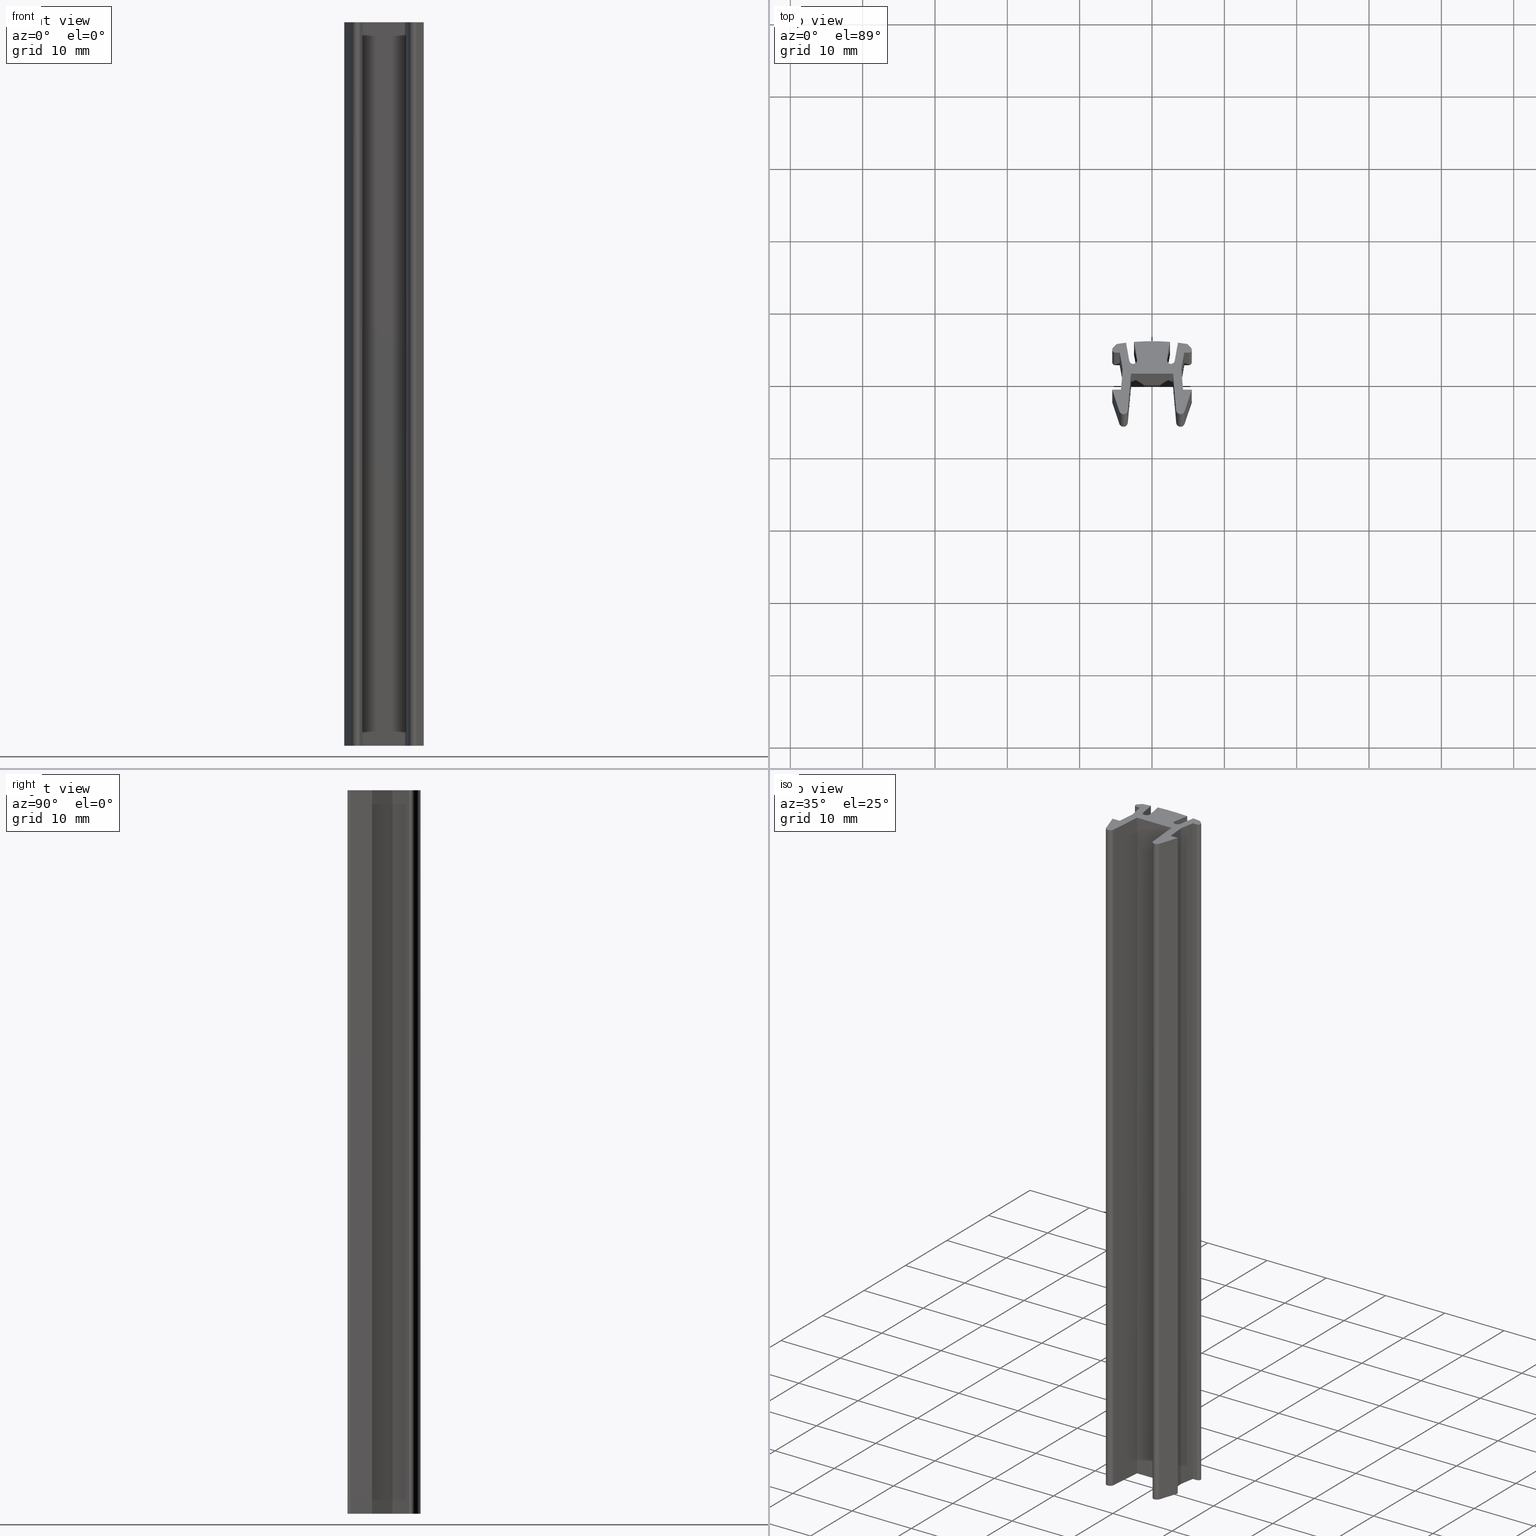
[diagram: canonical four-view strip — front | top / right | iso, engineering-drawing reading convention]
A machine part, canonical four-view strip (front | top / right | iso — engineering-drawing reading convention). The complete STEP part file that produces these views, byte-faithful:
ISO-10303-21;
HEADER;
/* Generated by software containing ST-Developer
 * from STEP Tools, Inc. (www.steptools.com) 
 */

FILE_DESCRIPTION(
/* description */ ('GUARNIZIONE CAVA PER - PVC NERO '),
/* implementation_level */ '2;1');

FILE_NAME(
/* name */ 'C:\\Users\\Tecnico5\\Documents\\DGUCA0000013.stp',
/* time_stamp */ '2020-07-09T18:02:31+02:00',
/* author */ ('tecnico5'),
/* organization */ (''),
/* preprocessor_version */ 'ST-DEVELOPER v17.2',
/* originating_system */ 'Autodesk Inventor 2019',
/* authorisation */ '');

FILE_SCHEMA (('AUTOMOTIVE_DESIGN { 1 0 10303 214 3 1 1 }'));
ENDSEC;

DATA;
#10=MECHANICAL_DESIGN_GEOMETRIC_PRESENTATION_REPRESENTATION('',(#13),#999);
#11=SHAPE_REPRESENTATION_RELATIONSHIP('SRR','None',#1006,#12);
#12=ADVANCED_BREP_SHAPE_REPRESENTATION('',(#14),#998);
#13=STYLED_ITEM('',(#1015),#14);
#14=MANIFOLD_SOLID_BREP('Solido2',#593);
#15=CIRCLE('',#617,0.6);
#16=CIRCLE('',#618,0.6);
#17=CIRCLE('',#625,0.399999999999949);
#18=CIRCLE('',#626,0.399999999999949);
#19=CIRCLE('',#629,29.9999984919437);
#20=CIRCLE('',#630,29.9999984919437);
#21=CIRCLE('',#633,0.55);
#22=CIRCLE('',#634,0.55);
#23=CIRCLE('',#637,29.9999984886163);
#24=CIRCLE('',#638,29.9999984886163);
#25=CIRCLE('',#641,0.55);
#26=CIRCLE('',#642,0.55);
#27=CIRCLE('',#645,29.9999984919437);
#28=CIRCLE('',#646,29.9999984919437);
#29=CIRCLE('',#649,0.399999999999949);
#30=CIRCLE('',#650,0.399999999999949);
#31=CIRCLE('',#657,0.6);
#32=CIRCLE('',#658,0.6);
#33=CYLINDRICAL_SURFACE('',#616,0.6);
#34=CYLINDRICAL_SURFACE('',#624,0.399999999999949);
#35=CYLINDRICAL_SURFACE('',#628,29.9999984919437);
#36=CYLINDRICAL_SURFACE('',#632,0.55);
#37=CYLINDRICAL_SURFACE('',#636,29.9999984886163);
#38=CYLINDRICAL_SURFACE('',#640,0.55);
#39=CYLINDRICAL_SURFACE('',#644,29.9999984919437);
#40=CYLINDRICAL_SURFACE('',#648,0.399999999999949);
#41=CYLINDRICAL_SURFACE('',#656,0.6);
#42=FACE_OUTER_BOUND('',#72,.T.);
#43=FACE_OUTER_BOUND('',#73,.T.);
#44=FACE_OUTER_BOUND('',#74,.T.);
#45=FACE_OUTER_BOUND('',#75,.T.);
#46=FACE_OUTER_BOUND('',#76,.T.);
#47=FACE_OUTER_BOUND('',#77,.T.);
#48=FACE_OUTER_BOUND('',#78,.T.);
#49=FACE_OUTER_BOUND('',#79,.T.);
#50=FACE_OUTER_BOUND('',#80,.T.);
#51=FACE_OUTER_BOUND('',#81,.T.);
#52=FACE_OUTER_BOUND('',#82,.T.);
#53=FACE_OUTER_BOUND('',#83,.T.);
#54=FACE_OUTER_BOUND('',#84,.T.);
#55=FACE_OUTER_BOUND('',#85,.T.);
#56=FACE_OUTER_BOUND('',#86,.T.);
#57=FACE_OUTER_BOUND('',#87,.T.);
#58=FACE_OUTER_BOUND('',#88,.T.);
#59=FACE_OUTER_BOUND('',#89,.T.);
#60=FACE_OUTER_BOUND('',#90,.T.);
#61=FACE_OUTER_BOUND('',#91,.T.);
#62=FACE_OUTER_BOUND('',#92,.T.);
#63=FACE_OUTER_BOUND('',#93,.T.);
#64=FACE_OUTER_BOUND('',#94,.T.);
#65=FACE_OUTER_BOUND('',#95,.T.);
#66=FACE_OUTER_BOUND('',#96,.T.);
#67=FACE_OUTER_BOUND('',#97,.T.);
#68=FACE_OUTER_BOUND('',#98,.T.);
#69=FACE_OUTER_BOUND('',#99,.T.);
#70=FACE_OUTER_BOUND('',#100,.T.);
#71=FACE_OUTER_BOUND('',#101,.T.);
#72=EDGE_LOOP('',(#374,#375,#376,#377));
#73=EDGE_LOOP('',(#378,#379,#380,#381));
#74=EDGE_LOOP('',(#382,#383,#384,#385));
#75=EDGE_LOOP('',(#386,#387,#388,#389));
#76=EDGE_LOOP('',(#390,#391,#392,#393));
#77=EDGE_LOOP('',(#394,#395,#396,#397));
#78=EDGE_LOOP('',(#398,#399,#400,#401));
#79=EDGE_LOOP('',(#402,#403,#404,#405));
#80=EDGE_LOOP('',(#406,#407,#408,#409));
#81=EDGE_LOOP('',(#410,#411,#412,#413));
#82=EDGE_LOOP('',(#414,#415,#416,#417));
#83=EDGE_LOOP('',(#418,#419,#420,#421));
#84=EDGE_LOOP('',(#422,#423,#424,#425));
#85=EDGE_LOOP('',(#426,#427,#428,#429));
#86=EDGE_LOOP('',(#430,#431,#432,#433));
#87=EDGE_LOOP('',(#434,#435,#436,#437));
#88=EDGE_LOOP('',(#438,#439,#440,#441));
#89=EDGE_LOOP('',(#442,#443,#444,#445));
#90=EDGE_LOOP('',(#446,#447,#448,#449));
#91=EDGE_LOOP('',(#450,#451,#452,#453));
#92=EDGE_LOOP('',(#454,#455,#456,#457));
#93=EDGE_LOOP('',(#458,#459,#460,#461));
#94=EDGE_LOOP('',(#462,#463,#464,#465));
#95=EDGE_LOOP('',(#466,#467,#468,#469));
#96=EDGE_LOOP('',(#470,#471,#472,#473));
#97=EDGE_LOOP('',(#474,#475,#476,#477));
#98=EDGE_LOOP('',(#478,#479,#480,#481));
#99=EDGE_LOOP('',(#482,#483,#484,#485));
#100=EDGE_LOOP('',(#486,#487,#488,#489,#490,#491,#492,#493,#494,#495,#496,
#497,#498,#499,#500,#501,#502,#503,#504,#505,#506,#507,#508,#509,#510,#511,
#512,#513));
#101=EDGE_LOOP('',(#514,#515,#516,#517,#518,#519,#520,#521,#522,#523,#524,
#525,#526,#527,#528,#529,#530,#531,#532,#533,#534,#535,#536,#537,#538,#539,
#540,#541));
#102=LINE('',#829,#168);
#103=LINE('',#831,#169);
#104=LINE('',#833,#170);
#105=LINE('',#834,#171);
#106=LINE('',#837,#172);
#107=LINE('',#839,#173);
#108=LINE('',#840,#174);
#109=LINE('',#843,#175);
#110=LINE('',#845,#176);
#111=LINE('',#846,#177);
#112=LINE('',#852,#178);
#113=LINE('',#855,#179);
#114=LINE('',#857,#180);
#115=LINE('',#858,#181);
#116=LINE('',#861,#182);
#117=LINE('',#863,#183);
#118=LINE('',#864,#184);
#119=LINE('',#867,#185);
#120=LINE('',#869,#186);
#121=LINE('',#870,#187);
#122=LINE('',#873,#188);
#123=LINE('',#875,#189);
#124=LINE('',#876,#190);
#125=LINE('',#879,#191);
#126=LINE('',#881,#192);
#127=LINE('',#882,#193);
#128=LINE('',#888,#194);
#129=LINE('',#891,#195);
#130=LINE('',#893,#196);
#131=LINE('',#894,#197);
#132=LINE('',#900,#198);
#133=LINE('',#903,#199);
#134=LINE('',#905,#200);
#135=LINE('',#906,#201);
#136=LINE('',#912,#202);
#137=LINE('',#915,#203);
#138=LINE('',#917,#204);
#139=LINE('',#918,#205);
#140=LINE('',#924,#206);
#141=LINE('',#927,#207);
#142=LINE('',#929,#208);
#143=LINE('',#930,#209);
#144=LINE('',#936,#210);
#145=LINE('',#939,#211);
#146=LINE('',#941,#212);
#147=LINE('',#942,#213);
#148=LINE('',#948,#214);
#149=LINE('',#951,#215);
#150=LINE('',#953,#216);
#151=LINE('',#954,#217);
#152=LINE('',#960,#218);
#153=LINE('',#963,#219);
#154=LINE('',#965,#220);
#155=LINE('',#966,#221);
#156=LINE('',#969,#222);
#157=LINE('',#971,#223);
#158=LINE('',#972,#224);
#159=LINE('',#975,#225);
#160=LINE('',#977,#226);
#161=LINE('',#978,#227);
#162=LINE('',#981,#228);
#163=LINE('',#983,#229);
#164=LINE('',#984,#230);
#165=LINE('',#987,#231);
#166=LINE('',#989,#232);
#167=LINE('',#990,#233);
#168=VECTOR('',#665,10.);
#169=VECTOR('',#666,10.);
#170=VECTOR('',#667,10.);
#171=VECTOR('',#668,10.);
#172=VECTOR('',#671,10.);
#173=VECTOR('',#672,10.);
#174=VECTOR('',#673,10.);
#175=VECTOR('',#676,10.);
#176=VECTOR('',#677,10.);
#177=VECTOR('',#678,10.);
#178=VECTOR('',#685,10.);
#179=VECTOR('',#688,10.);
#180=VECTOR('',#689,10.);
#181=VECTOR('',#690,10.);
#182=VECTOR('',#693,10.);
#183=VECTOR('',#694,10.);
#184=VECTOR('',#695,10.);
#185=VECTOR('',#698,10.);
#186=VECTOR('',#699,10.);
#187=VECTOR('',#700,10.);
#188=VECTOR('',#703,10.);
#189=VECTOR('',#704,10.);
#190=VECTOR('',#705,10.);
#191=VECTOR('',#708,10.);
#192=VECTOR('',#709,10.);
#193=VECTOR('',#710,10.);
#194=VECTOR('',#717,10.);
#195=VECTOR('',#720,10.);
#196=VECTOR('',#721,10.);
#197=VECTOR('',#722,10.);
#198=VECTOR('',#729,10.);
#199=VECTOR('',#732,10.);
#200=VECTOR('',#733,10.);
#201=VECTOR('',#734,10.);
#202=VECTOR('',#741,10.);
#203=VECTOR('',#744,10.);
#204=VECTOR('',#745,10.);
#205=VECTOR('',#746,10.);
#206=VECTOR('',#753,10.);
#207=VECTOR('',#756,10.);
#208=VECTOR('',#757,10.);
#209=VECTOR('',#758,10.);
#210=VECTOR('',#765,10.);
#211=VECTOR('',#768,10.);
#212=VECTOR('',#769,10.);
#213=VECTOR('',#770,10.);
#214=VECTOR('',#777,10.);
#215=VECTOR('',#780,10.);
#216=VECTOR('',#781,10.);
#217=VECTOR('',#782,10.);
#218=VECTOR('',#789,10.);
#219=VECTOR('',#792,10.);
#220=VECTOR('',#793,10.);
#221=VECTOR('',#794,10.);
#222=VECTOR('',#797,10.);
#223=VECTOR('',#798,10.);
#224=VECTOR('',#799,10.);
#225=VECTOR('',#802,10.);
#226=VECTOR('',#803,10.);
#227=VECTOR('',#804,10.);
#228=VECTOR('',#807,10.);
#229=VECTOR('',#808,10.);
#230=VECTOR('',#809,10.);
#231=VECTOR('',#812,10.);
#232=VECTOR('',#813,10.);
#233=VECTOR('',#814,10.);
#234=VERTEX_POINT('',#827);
#235=VERTEX_POINT('',#828);
#236=VERTEX_POINT('',#830);
#237=VERTEX_POINT('',#832);
#238=VERTEX_POINT('',#836);
#239=VERTEX_POINT('',#838);
#240=VERTEX_POINT('',#842);
#241=VERTEX_POINT('',#844);
#242=VERTEX_POINT('',#848);
#243=VERTEX_POINT('',#850);
#244=VERTEX_POINT('',#854);
#245=VERTEX_POINT('',#856);
#246=VERTEX_POINT('',#860);
#247=VERTEX_POINT('',#862);
#248=VERTEX_POINT('',#866);
#249=VERTEX_POINT('',#868);
#250=VERTEX_POINT('',#872);
#251=VERTEX_POINT('',#874);
#252=VERTEX_POINT('',#878);
#253=VERTEX_POINT('',#880);
#254=VERTEX_POINT('',#884);
#255=VERTEX_POINT('',#886);
#256=VERTEX_POINT('',#890);
#257=VERTEX_POINT('',#892);
#258=VERTEX_POINT('',#896);
#259=VERTEX_POINT('',#898);
#260=VERTEX_POINT('',#902);
#261=VERTEX_POINT('',#904);
#262=VERTEX_POINT('',#908);
#263=VERTEX_POINT('',#910);
#264=VERTEX_POINT('',#914);
#265=VERTEX_POINT('',#916);
#266=VERTEX_POINT('',#920);
#267=VERTEX_POINT('',#922);
#268=VERTEX_POINT('',#926);
#269=VERTEX_POINT('',#928);
#270=VERTEX_POINT('',#932);
#271=VERTEX_POINT('',#934);
#272=VERTEX_POINT('',#938);
#273=VERTEX_POINT('',#940);
#274=VERTEX_POINT('',#944);
#275=VERTEX_POINT('',#946);
#276=VERTEX_POINT('',#950);
#277=VERTEX_POINT('',#952);
#278=VERTEX_POINT('',#956);
#279=VERTEX_POINT('',#958);
#280=VERTEX_POINT('',#962);
#281=VERTEX_POINT('',#964);
#282=VERTEX_POINT('',#968);
#283=VERTEX_POINT('',#970);
#284=VERTEX_POINT('',#974);
#285=VERTEX_POINT('',#976);
#286=VERTEX_POINT('',#980);
#287=VERTEX_POINT('',#982);
#288=VERTEX_POINT('',#986);
#289=VERTEX_POINT('',#988);
#290=EDGE_CURVE('',#234,#235,#102,.T.);
#291=EDGE_CURVE('',#235,#236,#103,.T.);
#292=EDGE_CURVE('',#237,#236,#104,.T.);
#293=EDGE_CURVE('',#234,#237,#105,.T.);
#294=EDGE_CURVE('',#238,#234,#106,.T.);
#295=EDGE_CURVE('',#239,#237,#107,.T.);
#296=EDGE_CURVE('',#238,#239,#108,.T.);
#297=EDGE_CURVE('',#240,#238,#109,.T.);
#298=EDGE_CURVE('',#241,#239,#110,.T.);
#299=EDGE_CURVE('',#240,#241,#111,.T.);
#300=EDGE_CURVE('',#242,#240,#15,.T.);
#301=EDGE_CURVE('',#243,#241,#16,.T.);
#302=EDGE_CURVE('',#242,#243,#112,.T.);
#303=EDGE_CURVE('',#244,#242,#113,.T.);
#304=EDGE_CURVE('',#245,#243,#114,.T.);
#305=EDGE_CURVE('',#244,#245,#115,.T.);
#306=EDGE_CURVE('',#246,#244,#116,.T.);
#307=EDGE_CURVE('',#247,#245,#117,.T.);
#308=EDGE_CURVE('',#246,#247,#118,.T.);
#309=EDGE_CURVE('',#248,#246,#119,.T.);
#310=EDGE_CURVE('',#249,#247,#120,.T.);
#311=EDGE_CURVE('',#248,#249,#121,.T.);
#312=EDGE_CURVE('',#250,#248,#122,.T.);
#313=EDGE_CURVE('',#251,#249,#123,.T.);
#314=EDGE_CURVE('',#250,#251,#124,.T.);
#315=EDGE_CURVE('',#252,#250,#125,.T.);
#316=EDGE_CURVE('',#253,#251,#126,.T.);
#317=EDGE_CURVE('',#252,#253,#127,.T.);
#318=EDGE_CURVE('',#254,#252,#17,.T.);
#319=EDGE_CURVE('',#255,#253,#18,.T.);
#320=EDGE_CURVE('',#254,#255,#128,.T.);
#321=EDGE_CURVE('',#256,#254,#129,.T.);
#322=EDGE_CURVE('',#257,#255,#130,.T.);
#323=EDGE_CURVE('',#256,#257,#131,.T.);
#324=EDGE_CURVE('',#258,#256,#19,.T.);
#325=EDGE_CURVE('',#259,#257,#20,.T.);
#326=EDGE_CURVE('',#258,#259,#132,.T.);
#327=EDGE_CURVE('',#260,#258,#133,.T.);
#328=EDGE_CURVE('',#261,#259,#134,.T.);
#329=EDGE_CURVE('',#260,#261,#135,.T.);
#330=EDGE_CURVE('',#262,#260,#21,.T.);
#331=EDGE_CURVE('',#263,#261,#22,.T.);
#332=EDGE_CURVE('',#262,#263,#136,.T.);
#333=EDGE_CURVE('',#264,#262,#137,.T.);
#334=EDGE_CURVE('',#265,#263,#138,.T.);
#335=EDGE_CURVE('',#264,#265,#139,.T.);
#336=EDGE_CURVE('',#266,#264,#23,.T.);
#337=EDGE_CURVE('',#267,#265,#24,.T.);
#338=EDGE_CURVE('',#266,#267,#140,.T.);
#339=EDGE_CURVE('',#268,#266,#141,.T.);
#340=EDGE_CURVE('',#269,#267,#142,.T.);
#341=EDGE_CURVE('',#268,#269,#143,.T.);
#342=EDGE_CURVE('',#270,#268,#25,.T.);
#343=EDGE_CURVE('',#271,#269,#26,.T.);
#344=EDGE_CURVE('',#270,#271,#144,.T.);
#345=EDGE_CURVE('',#272,#270,#145,.T.);
#346=EDGE_CURVE('',#273,#271,#146,.T.);
#347=EDGE_CURVE('',#272,#273,#147,.T.);
#348=EDGE_CURVE('',#274,#272,#27,.T.);
#349=EDGE_CURVE('',#275,#273,#28,.T.);
#350=EDGE_CURVE('',#274,#275,#148,.T.);
#351=EDGE_CURVE('',#276,#274,#149,.T.);
#352=EDGE_CURVE('',#277,#275,#150,.T.);
#353=EDGE_CURVE('',#276,#277,#151,.T.);
#354=EDGE_CURVE('',#278,#276,#29,.T.);
#355=EDGE_CURVE('',#279,#277,#30,.T.);
#356=EDGE_CURVE('',#278,#279,#152,.T.);
#357=EDGE_CURVE('',#280,#278,#153,.T.);
#358=EDGE_CURVE('',#281,#279,#154,.T.);
#359=EDGE_CURVE('',#280,#281,#155,.T.);
#360=EDGE_CURVE('',#282,#280,#156,.T.);
#361=EDGE_CURVE('',#283,#281,#157,.T.);
#362=EDGE_CURVE('',#282,#283,#158,.T.);
#363=EDGE_CURVE('',#284,#282,#159,.T.);
#364=EDGE_CURVE('',#285,#283,#160,.T.);
#365=EDGE_CURVE('',#284,#285,#161,.T.);
#366=EDGE_CURVE('',#286,#284,#162,.T.);
#367=EDGE_CURVE('',#287,#285,#163,.T.);
#368=EDGE_CURVE('',#286,#287,#164,.T.);
#369=EDGE_CURVE('',#288,#286,#165,.T.);
#370=EDGE_CURVE('',#289,#287,#166,.T.);
#371=EDGE_CURVE('',#288,#289,#167,.T.);
#372=EDGE_CURVE('',#235,#288,#31,.T.);
#373=EDGE_CURVE('',#236,#289,#32,.T.);
#374=ORIENTED_EDGE('',*,*,#290,.T.);
#375=ORIENTED_EDGE('',*,*,#291,.T.);
#376=ORIENTED_EDGE('',*,*,#292,.F.);
#377=ORIENTED_EDGE('',*,*,#293,.F.);
#378=ORIENTED_EDGE('',*,*,#294,.T.);
#379=ORIENTED_EDGE('',*,*,#293,.T.);
#380=ORIENTED_EDGE('',*,*,#295,.F.);
#381=ORIENTED_EDGE('',*,*,#296,.F.);
#382=ORIENTED_EDGE('',*,*,#297,.T.);
#383=ORIENTED_EDGE('',*,*,#296,.T.);
#384=ORIENTED_EDGE('',*,*,#298,.F.);
#385=ORIENTED_EDGE('',*,*,#299,.F.);
#386=ORIENTED_EDGE('',*,*,#300,.T.);
#387=ORIENTED_EDGE('',*,*,#299,.T.);
#388=ORIENTED_EDGE('',*,*,#301,.F.);
#389=ORIENTED_EDGE('',*,*,#302,.F.);
#390=ORIENTED_EDGE('',*,*,#303,.T.);
#391=ORIENTED_EDGE('',*,*,#302,.T.);
#392=ORIENTED_EDGE('',*,*,#304,.F.);
#393=ORIENTED_EDGE('',*,*,#305,.F.);
#394=ORIENTED_EDGE('',*,*,#306,.T.);
#395=ORIENTED_EDGE('',*,*,#305,.T.);
#396=ORIENTED_EDGE('',*,*,#307,.F.);
#397=ORIENTED_EDGE('',*,*,#308,.F.);
#398=ORIENTED_EDGE('',*,*,#309,.T.);
#399=ORIENTED_EDGE('',*,*,#308,.T.);
#400=ORIENTED_EDGE('',*,*,#310,.F.);
#401=ORIENTED_EDGE('',*,*,#311,.F.);
#402=ORIENTED_EDGE('',*,*,#312,.T.);
#403=ORIENTED_EDGE('',*,*,#311,.T.);
#404=ORIENTED_EDGE('',*,*,#313,.F.);
#405=ORIENTED_EDGE('',*,*,#314,.F.);
#406=ORIENTED_EDGE('',*,*,#315,.T.);
#407=ORIENTED_EDGE('',*,*,#314,.T.);
#408=ORIENTED_EDGE('',*,*,#316,.F.);
#409=ORIENTED_EDGE('',*,*,#317,.F.);
#410=ORIENTED_EDGE('',*,*,#318,.T.);
#411=ORIENTED_EDGE('',*,*,#317,.T.);
#412=ORIENTED_EDGE('',*,*,#319,.F.);
#413=ORIENTED_EDGE('',*,*,#320,.F.);
#414=ORIENTED_EDGE('',*,*,#321,.T.);
#415=ORIENTED_EDGE('',*,*,#320,.T.);
#416=ORIENTED_EDGE('',*,*,#322,.F.);
#417=ORIENTED_EDGE('',*,*,#323,.F.);
#418=ORIENTED_EDGE('',*,*,#324,.T.);
#419=ORIENTED_EDGE('',*,*,#323,.T.);
#420=ORIENTED_EDGE('',*,*,#325,.F.);
#421=ORIENTED_EDGE('',*,*,#326,.F.);
#422=ORIENTED_EDGE('',*,*,#327,.T.);
#423=ORIENTED_EDGE('',*,*,#326,.T.);
#424=ORIENTED_EDGE('',*,*,#328,.F.);
#425=ORIENTED_EDGE('',*,*,#329,.F.);
#426=ORIENTED_EDGE('',*,*,#330,.T.);
#427=ORIENTED_EDGE('',*,*,#329,.T.);
#428=ORIENTED_EDGE('',*,*,#331,.F.);
#429=ORIENTED_EDGE('',*,*,#332,.F.);
#430=ORIENTED_EDGE('',*,*,#333,.T.);
#431=ORIENTED_EDGE('',*,*,#332,.T.);
#432=ORIENTED_EDGE('',*,*,#334,.F.);
#433=ORIENTED_EDGE('',*,*,#335,.F.);
#434=ORIENTED_EDGE('',*,*,#336,.T.);
#435=ORIENTED_EDGE('',*,*,#335,.T.);
#436=ORIENTED_EDGE('',*,*,#337,.F.);
#437=ORIENTED_EDGE('',*,*,#338,.F.);
#438=ORIENTED_EDGE('',*,*,#339,.T.);
#439=ORIENTED_EDGE('',*,*,#338,.T.);
#440=ORIENTED_EDGE('',*,*,#340,.F.);
#441=ORIENTED_EDGE('',*,*,#341,.F.);
#442=ORIENTED_EDGE('',*,*,#342,.T.);
#443=ORIENTED_EDGE('',*,*,#341,.T.);
#444=ORIENTED_EDGE('',*,*,#343,.F.);
#445=ORIENTED_EDGE('',*,*,#344,.F.);
#446=ORIENTED_EDGE('',*,*,#345,.T.);
#447=ORIENTED_EDGE('',*,*,#344,.T.);
#448=ORIENTED_EDGE('',*,*,#346,.F.);
#449=ORIENTED_EDGE('',*,*,#347,.F.);
#450=ORIENTED_EDGE('',*,*,#348,.T.);
#451=ORIENTED_EDGE('',*,*,#347,.T.);
#452=ORIENTED_EDGE('',*,*,#349,.F.);
#453=ORIENTED_EDGE('',*,*,#350,.F.);
#454=ORIENTED_EDGE('',*,*,#351,.T.);
#455=ORIENTED_EDGE('',*,*,#350,.T.);
#456=ORIENTED_EDGE('',*,*,#352,.F.);
#457=ORIENTED_EDGE('',*,*,#353,.F.);
#458=ORIENTED_EDGE('',*,*,#354,.T.);
#459=ORIENTED_EDGE('',*,*,#353,.T.);
#460=ORIENTED_EDGE('',*,*,#355,.F.);
#461=ORIENTED_EDGE('',*,*,#356,.F.);
#462=ORIENTED_EDGE('',*,*,#357,.T.);
#463=ORIENTED_EDGE('',*,*,#356,.T.);
#464=ORIENTED_EDGE('',*,*,#358,.F.);
#465=ORIENTED_EDGE('',*,*,#359,.F.);
#466=ORIENTED_EDGE('',*,*,#360,.T.);
#467=ORIENTED_EDGE('',*,*,#359,.T.);
#468=ORIENTED_EDGE('',*,*,#361,.F.);
#469=ORIENTED_EDGE('',*,*,#362,.F.);
#470=ORIENTED_EDGE('',*,*,#363,.T.);
#471=ORIENTED_EDGE('',*,*,#362,.T.);
#472=ORIENTED_EDGE('',*,*,#364,.F.);
#473=ORIENTED_EDGE('',*,*,#365,.F.);
#474=ORIENTED_EDGE('',*,*,#366,.T.);
#475=ORIENTED_EDGE('',*,*,#365,.T.);
#476=ORIENTED_EDGE('',*,*,#367,.F.);
#477=ORIENTED_EDGE('',*,*,#368,.F.);
#478=ORIENTED_EDGE('',*,*,#369,.T.);
#479=ORIENTED_EDGE('',*,*,#368,.T.);
#480=ORIENTED_EDGE('',*,*,#370,.F.);
#481=ORIENTED_EDGE('',*,*,#371,.F.);
#482=ORIENTED_EDGE('',*,*,#372,.T.);
#483=ORIENTED_EDGE('',*,*,#371,.T.);
#484=ORIENTED_EDGE('',*,*,#373,.F.);
#485=ORIENTED_EDGE('',*,*,#291,.F.);
#486=ORIENTED_EDGE('',*,*,#373,.T.);
#487=ORIENTED_EDGE('',*,*,#370,.T.);
#488=ORIENTED_EDGE('',*,*,#367,.T.);
#489=ORIENTED_EDGE('',*,*,#364,.T.);
#490=ORIENTED_EDGE('',*,*,#361,.T.);
#491=ORIENTED_EDGE('',*,*,#358,.T.);
#492=ORIENTED_EDGE('',*,*,#355,.T.);
#493=ORIENTED_EDGE('',*,*,#352,.T.);
#494=ORIENTED_EDGE('',*,*,#349,.T.);
#495=ORIENTED_EDGE('',*,*,#346,.T.);
#496=ORIENTED_EDGE('',*,*,#343,.T.);
#497=ORIENTED_EDGE('',*,*,#340,.T.);
#498=ORIENTED_EDGE('',*,*,#337,.T.);
#499=ORIENTED_EDGE('',*,*,#334,.T.);
#500=ORIENTED_EDGE('',*,*,#331,.T.);
#501=ORIENTED_EDGE('',*,*,#328,.T.);
#502=ORIENTED_EDGE('',*,*,#325,.T.);
#503=ORIENTED_EDGE('',*,*,#322,.T.);
#504=ORIENTED_EDGE('',*,*,#319,.T.);
#505=ORIENTED_EDGE('',*,*,#316,.T.);
#506=ORIENTED_EDGE('',*,*,#313,.T.);
#507=ORIENTED_EDGE('',*,*,#310,.T.);
#508=ORIENTED_EDGE('',*,*,#307,.T.);
#509=ORIENTED_EDGE('',*,*,#304,.T.);
#510=ORIENTED_EDGE('',*,*,#301,.T.);
#511=ORIENTED_EDGE('',*,*,#298,.T.);
#512=ORIENTED_EDGE('',*,*,#295,.T.);
#513=ORIENTED_EDGE('',*,*,#292,.T.);
#514=ORIENTED_EDGE('',*,*,#372,.F.);
#515=ORIENTED_EDGE('',*,*,#290,.F.);
#516=ORIENTED_EDGE('',*,*,#294,.F.);
#517=ORIENTED_EDGE('',*,*,#297,.F.);
#518=ORIENTED_EDGE('',*,*,#300,.F.);
#519=ORIENTED_EDGE('',*,*,#303,.F.);
#520=ORIENTED_EDGE('',*,*,#306,.F.);
#521=ORIENTED_EDGE('',*,*,#309,.F.);
#522=ORIENTED_EDGE('',*,*,#312,.F.);
#523=ORIENTED_EDGE('',*,*,#315,.F.);
#524=ORIENTED_EDGE('',*,*,#318,.F.);
#525=ORIENTED_EDGE('',*,*,#321,.F.);
#526=ORIENTED_EDGE('',*,*,#324,.F.);
#527=ORIENTED_EDGE('',*,*,#327,.F.);
#528=ORIENTED_EDGE('',*,*,#330,.F.);
#529=ORIENTED_EDGE('',*,*,#333,.F.);
#530=ORIENTED_EDGE('',*,*,#336,.F.);
#531=ORIENTED_EDGE('',*,*,#339,.F.);
#532=ORIENTED_EDGE('',*,*,#342,.F.);
#533=ORIENTED_EDGE('',*,*,#345,.F.);
#534=ORIENTED_EDGE('',*,*,#348,.F.);
#535=ORIENTED_EDGE('',*,*,#351,.F.);
#536=ORIENTED_EDGE('',*,*,#354,.F.);
#537=ORIENTED_EDGE('',*,*,#357,.F.);
#538=ORIENTED_EDGE('',*,*,#360,.F.);
#539=ORIENTED_EDGE('',*,*,#363,.F.);
#540=ORIENTED_EDGE('',*,*,#366,.F.);
#541=ORIENTED_EDGE('',*,*,#369,.F.);
#542=PLANE('',#613);
#543=PLANE('',#614);
#544=PLANE('',#615);
#545=PLANE('',#619);
#546=PLANE('',#620);
#547=PLANE('',#621);
#548=PLANE('',#622);
#549=PLANE('',#623);
#550=PLANE('',#627);
#551=PLANE('',#631);
#552=PLANE('',#635);
#553=PLANE('',#639);
#554=PLANE('',#643);
#555=PLANE('',#647);
#556=PLANE('',#651);
#557=PLANE('',#652);
#558=PLANE('',#653);
#559=PLANE('',#654);
#560=PLANE('',#655);
#561=PLANE('',#659);
#562=PLANE('',#660);
#563=ADVANCED_FACE('',(#42),#542,.T.);
#564=ADVANCED_FACE('',(#43),#543,.T.);
#565=ADVANCED_FACE('',(#44),#544,.T.);
#566=ADVANCED_FACE('',(#45),#33,.T.);
#567=ADVANCED_FACE('',(#46),#545,.T.);
#568=ADVANCED_FACE('',(#47),#546,.T.);
#569=ADVANCED_FACE('',(#48),#547,.T.);
#570=ADVANCED_FACE('',(#49),#548,.T.);
#571=ADVANCED_FACE('',(#50),#549,.T.);
#572=ADVANCED_FACE('',(#51),#34,.T.);
#573=ADVANCED_FACE('',(#52),#550,.T.);
#574=ADVANCED_FACE('',(#53),#35,.T.);
#575=ADVANCED_FACE('',(#54),#551,.T.);
#576=ADVANCED_FACE('',(#55),#36,.F.);
#577=ADVANCED_FACE('',(#56),#552,.T.);
#578=ADVANCED_FACE('',(#57),#37,.T.);
#579=ADVANCED_FACE('',(#58),#553,.T.);
#580=ADVANCED_FACE('',(#59),#38,.F.);
#581=ADVANCED_FACE('',(#60),#554,.T.);
#582=ADVANCED_FACE('',(#61),#39,.T.);
#583=ADVANCED_FACE('',(#62),#555,.T.);
#584=ADVANCED_FACE('',(#63),#40,.T.);
#585=ADVANCED_FACE('',(#64),#556,.T.);
#586=ADVANCED_FACE('',(#65),#557,.T.);
#587=ADVANCED_FACE('',(#66),#558,.T.);
#588=ADVANCED_FACE('',(#67),#559,.T.);
#589=ADVANCED_FACE('',(#68),#560,.T.);
#590=ADVANCED_FACE('',(#69),#41,.T.);
#591=ADVANCED_FACE('',(#70),#561,.T.);
#592=ADVANCED_FACE('',(#71),#562,.F.);
#593=CLOSED_SHELL('',(#563,#564,#565,#566,#567,#568,#569,#570,#571,#572,
#573,#574,#575,#576,#577,#578,#579,#580,#581,#582,#583,#584,#585,#586,#587,
#588,#589,#590,#591,#592));
#594=DERIVED_UNIT_ELEMENT(#596,1.);
#595=DERIVED_UNIT_ELEMENT(#1001,3.);
#596=(
MASS_UNIT()
NAMED_UNIT(*)
SI_UNIT($,.GRAM.)
);
#597=DERIVED_UNIT((#594,#595));
#598=MEASURE_REPRESENTATION_ITEM('density measure',
POSITIVE_RATIO_MEASURE(0.5),#597);
#599=PROPERTY_DEFINITION_REPRESENTATION(#604,#601);
#600=PROPERTY_DEFINITION_REPRESENTATION(#605,#602);
#601=REPRESENTATION('material name',(#603),#998);
#602=REPRESENTATION('density',(#598),#998);
#603=DESCRIPTIVE_REPRESENTATION_ITEM('PVC Grigio','PVC Grigio');
#604=PROPERTY_DEFINITION('material property','material name',#1008);
#605=PROPERTY_DEFINITION('material property','density of part',#1008);
#606=DATE_TIME_ROLE('creation_date');
#607=APPLIED_DATE_AND_TIME_ASSIGNMENT(#608,#606,(#1008));
#608=DATE_AND_TIME(#609,#610);
#609=CALENDAR_DATE(2017,17,7);
#610=LOCAL_TIME(15,11,31.,#611);
#611=COORDINATED_UNIVERSAL_TIME_OFFSET(0,0,.BEHIND.);
#612=AXIS2_PLACEMENT_3D('placement',#825,#661,#662);
#613=AXIS2_PLACEMENT_3D('',#826,#663,#664);
#614=AXIS2_PLACEMENT_3D('',#835,#669,#670);
#615=AXIS2_PLACEMENT_3D('',#841,#674,#675);
#616=AXIS2_PLACEMENT_3D('',#847,#679,#680);
#617=AXIS2_PLACEMENT_3D('',#849,#681,#682);
#618=AXIS2_PLACEMENT_3D('',#851,#683,#684);
#619=AXIS2_PLACEMENT_3D('',#853,#686,#687);
#620=AXIS2_PLACEMENT_3D('',#859,#691,#692);
#621=AXIS2_PLACEMENT_3D('',#865,#696,#697);
#622=AXIS2_PLACEMENT_3D('',#871,#701,#702);
#623=AXIS2_PLACEMENT_3D('',#877,#706,#707);
#624=AXIS2_PLACEMENT_3D('',#883,#711,#712);
#625=AXIS2_PLACEMENT_3D('',#885,#713,#714);
#626=AXIS2_PLACEMENT_3D('',#887,#715,#716);
#627=AXIS2_PLACEMENT_3D('',#889,#718,#719);
#628=AXIS2_PLACEMENT_3D('',#895,#723,#724);
#629=AXIS2_PLACEMENT_3D('',#897,#725,#726);
#630=AXIS2_PLACEMENT_3D('',#899,#727,#728);
#631=AXIS2_PLACEMENT_3D('',#901,#730,#731);
#632=AXIS2_PLACEMENT_3D('',#907,#735,#736);
#633=AXIS2_PLACEMENT_3D('',#909,#737,#738);
#634=AXIS2_PLACEMENT_3D('',#911,#739,#740);
#635=AXIS2_PLACEMENT_3D('',#913,#742,#743);
#636=AXIS2_PLACEMENT_3D('',#919,#747,#748);
#637=AXIS2_PLACEMENT_3D('',#921,#749,#750);
#638=AXIS2_PLACEMENT_3D('',#923,#751,#752);
#639=AXIS2_PLACEMENT_3D('',#925,#754,#755);
#640=AXIS2_PLACEMENT_3D('',#931,#759,#760);
#641=AXIS2_PLACEMENT_3D('',#933,#761,#762);
#642=AXIS2_PLACEMENT_3D('',#935,#763,#764);
#643=AXIS2_PLACEMENT_3D('',#937,#766,#767);
#644=AXIS2_PLACEMENT_3D('',#943,#771,#772);
#645=AXIS2_PLACEMENT_3D('',#945,#773,#774);
#646=AXIS2_PLACEMENT_3D('',#947,#775,#776);
#647=AXIS2_PLACEMENT_3D('',#949,#778,#779);
#648=AXIS2_PLACEMENT_3D('',#955,#783,#784);
#649=AXIS2_PLACEMENT_3D('',#957,#785,#786);
#650=AXIS2_PLACEMENT_3D('',#959,#787,#788);
#651=AXIS2_PLACEMENT_3D('',#961,#790,#791);
#652=AXIS2_PLACEMENT_3D('',#967,#795,#796);
#653=AXIS2_PLACEMENT_3D('',#973,#800,#801);
#654=AXIS2_PLACEMENT_3D('',#979,#805,#806);
#655=AXIS2_PLACEMENT_3D('',#985,#810,#811);
#656=AXIS2_PLACEMENT_3D('',#991,#815,#816);
#657=AXIS2_PLACEMENT_3D('',#992,#817,#818);
#658=AXIS2_PLACEMENT_3D('',#993,#819,#820);
#659=AXIS2_PLACEMENT_3D('',#994,#821,#822);
#660=AXIS2_PLACEMENT_3D('',#995,#823,#824);
#661=DIRECTION('axis',(0.,0.,1.));
#662=DIRECTION('refdir',(1.,0.,0.));
#663=DIRECTION('center_axis',(-0.996194698091745,-0.0871557427476594,0.));
#664=DIRECTION('ref_axis',(0.0871557427476594,-0.996194698091746,0.));
#665=DIRECTION('',(0.0871557427476594,-0.996194698091746,0.));
#666=DIRECTION('',(0.,0.,1.));
#667=DIRECTION('',(0.0871557427476594,-0.996194698091746,0.));
#668=DIRECTION('',(0.,0.,1.));
#669=DIRECTION('center_axis',(0.,-1.,0.));
#670=DIRECTION('ref_axis',(1.,0.,0.));
#671=DIRECTION('',(1.,0.,0.));
#672=DIRECTION('',(1.,0.,0.));
#673=DIRECTION('',(0.,0.,1.));
#674=DIRECTION('center_axis',(0.996194698091746,-0.0871557427476585,0.));
#675=DIRECTION('ref_axis',(0.0871557427476585,0.996194698091746,0.));
#676=DIRECTION('',(0.0871557427476585,0.996194698091746,0.));
#677=DIRECTION('',(0.0871557427476585,0.996194698091746,0.));
#678=DIRECTION('',(0.,0.,1.));
#679=DIRECTION('center_axis',(0.,0.,1.));
#680=DIRECTION('ref_axis',(-0.949486927816688,-0.313806586777952,0.));
#681=DIRECTION('center_axis',(0.,0.,1.));
#682=DIRECTION('ref_axis',(-0.949486927816688,-0.313806586777952,0.));
#683=DIRECTION('center_axis',(0.,0.,1.));
#684=DIRECTION('ref_axis',(-0.949486927816688,-0.313806586777952,0.));
#685=DIRECTION('',(0.,0.,1.));
#686=DIRECTION('center_axis',(-0.949486927816688,-0.313806586777951,0.));
#687=DIRECTION('ref_axis',(0.313806586777951,-0.949486927816688,0.));
#688=DIRECTION('',(0.313806586777951,-0.949486927816688,0.));
#689=DIRECTION('',(0.313806586777951,-0.949486927816688,0.));
#690=DIRECTION('',(0.,0.,1.));
#691=DIRECTION('center_axis',(0.,1.,0.));
#692=DIRECTION('ref_axis',(-1.,0.,0.));
#693=DIRECTION('',(-1.,0.,0.));
#694=DIRECTION('',(-1.,0.,0.));
#695=DIRECTION('',(0.,0.,1.));
#696=DIRECTION('center_axis',(-0.996194698091746,0.0871557427476577,0.));
#697=DIRECTION('ref_axis',(-0.0871557427476577,-0.996194698091746,0.));
#698=DIRECTION('',(-0.0871557427476577,-0.996194698091746,0.));
#699=DIRECTION('',(-0.0871557427476577,-0.996194698091746,0.));
#700=DIRECTION('',(0.,0.,1.));
#701=DIRECTION('center_axis',(-0.984807753012208,-0.173648177666931,0.));
#702=DIRECTION('ref_axis',(0.173648177666931,-0.984807753012208,0.));
#703=DIRECTION('',(0.173648177666931,-0.984807753012208,0.));
#704=DIRECTION('',(0.173648177666931,-0.984807753012208,0.));
#705=DIRECTION('',(0.,0.,1.));
#706=DIRECTION('center_axis',(0.,-1.,0.));
#707=DIRECTION('ref_axis',(1.,0.,0.));
#708=DIRECTION('',(1.,0.,0.));
#709=DIRECTION('',(1.,0.,0.));
#710=DIRECTION('',(0.,0.,1.));
#711=DIRECTION('center_axis',(0.,0.,1.));
#712=DIRECTION('ref_axis',(-0.707106836130479,0.707106726242612,0.));
#713=DIRECTION('center_axis',(0.,0.,1.));
#714=DIRECTION('ref_axis',(-0.707106836130479,0.707106726242612,0.));
#715=DIRECTION('center_axis',(0.,0.,1.));
#716=DIRECTION('ref_axis',(-0.707106836130479,0.707106726242612,0.));
#717=DIRECTION('',(0.,0.,1.));
#718=DIRECTION('center_axis',(-0.707106781186548,0.707106781186548,0.));
#719=DIRECTION('ref_axis',(-0.707106781186548,-0.707106781186548,0.));
#720=DIRECTION('',(-0.707106781186548,-0.707106781186548,0.));
#721=DIRECTION('',(-0.707106781186548,-0.707106781186548,0.));
#722=DIRECTION('',(0.,0.,1.));
#723=DIRECTION('center_axis',(0.,0.,1.));
#724=DIRECTION('ref_axis',(-0.119445012247302,0.992840817578146,0.));
#725=DIRECTION('center_axis',(0.,0.,1.));
#726=DIRECTION('ref_axis',(-0.119445012247302,0.992840817578146,0.));
#727=DIRECTION('center_axis',(0.,0.,1.));
#728=DIRECTION('ref_axis',(-0.119445012247302,0.992840817578146,0.));
#729=DIRECTION('',(0.,0.,1.));
#730=DIRECTION('center_axis',(0.984807753012208,0.173648177666931,0.));
#731=DIRECTION('ref_axis',(-0.173648177666931,0.984807753012208,0.));
#732=DIRECTION('',(-0.173648177666931,0.984807753012208,0.));
#733=DIRECTION('',(-0.173648177666931,0.984807753012208,0.));
#734=DIRECTION('',(0.,0.,1.));
#735=DIRECTION('center_axis',(0.,0.,1.));
#736=DIRECTION('ref_axis',(0.984807753012208,0.173648177666931,0.));
#737=DIRECTION('center_axis',(0.,0.,-1.));
#738=DIRECTION('ref_axis',(0.984807753012208,0.173648177666931,0.));
#739=DIRECTION('center_axis',(0.,0.,-1.));
#740=DIRECTION('ref_axis',(0.984807753012208,0.173648177666931,0.));
#741=DIRECTION('',(0.,0.,1.));
#742=DIRECTION('center_axis',(-0.984807753012208,-0.173648177666931,0.));
#743=DIRECTION('ref_axis',(0.173648177666931,-0.984807753012208,0.));
#744=DIRECTION('',(0.173648177666931,-0.984807753012208,0.));
#745=DIRECTION('',(0.173648177666931,-0.984807753012208,0.));
#746=DIRECTION('',(0.,0.,1.));
#747=DIRECTION('center_axis',(0.,0.,1.));
#748=DIRECTION('ref_axis',(0.0828685809150496,0.996560484013452,0.));
#749=DIRECTION('center_axis',(0.,0.,1.));
#750=DIRECTION('ref_axis',(0.0828685809150496,0.996560484013452,0.));
#751=DIRECTION('center_axis',(0.,0.,1.));
#752=DIRECTION('ref_axis',(0.0828685809150496,0.996560484013452,0.));
#753=DIRECTION('',(0.,0.,1.));
#754=DIRECTION('center_axis',(0.984807753012208,-0.173648177666932,0.));
#755=DIRECTION('ref_axis',(0.173648177666932,0.984807753012208,0.));
#756=DIRECTION('',(0.173648177666932,0.984807753012208,0.));
#757=DIRECTION('',(0.173648177666932,0.984807753012208,0.));
#758=DIRECTION('',(0.,0.,1.));
#759=DIRECTION('center_axis',(0.,0.,1.));
#760=DIRECTION('ref_axis',(0.984807753012208,-0.173648177666931,0.));
#761=DIRECTION('center_axis',(0.,0.,-1.));
#762=DIRECTION('ref_axis',(0.984807753012208,-0.173648177666931,0.));
#763=DIRECTION('center_axis',(0.,0.,-1.));
#764=DIRECTION('ref_axis',(0.984807753012208,-0.173648177666931,0.));
#765=DIRECTION('',(0.,0.,1.));
#766=DIRECTION('center_axis',(-0.984807753012208,0.173648177666932,0.));
#767=DIRECTION('ref_axis',(-0.173648177666932,-0.984807753012208,0.));
#768=DIRECTION('',(-0.173648177666932,-0.984807753012208,0.));
#769=DIRECTION('',(-0.173648177666932,-0.984807753012208,0.));
#770=DIRECTION('',(0.,0.,1.));
#771=DIRECTION('center_axis',(0.,0.,1.));
#772=DIRECTION('ref_axis',(0.162761431405844,0.98666545315356,0.));
#773=DIRECTION('center_axis',(0.,0.,1.));
#774=DIRECTION('ref_axis',(0.162761431405844,0.98666545315356,0.));
#775=DIRECTION('center_axis',(0.,0.,1.));
#776=DIRECTION('ref_axis',(0.162761431405844,0.98666545315356,0.));
#777=DIRECTION('',(0.,0.,1.));
#778=DIRECTION('center_axis',(0.707106736631224,0.707106825741868,0.));
#779=DIRECTION('ref_axis',(-0.707106825741868,0.707106736631224,0.));
#780=DIRECTION('',(-0.707106825741868,0.707106736631224,0.));
#781=DIRECTION('',(-0.707106825741868,0.707106736631224,0.));
#782=DIRECTION('',(0.,0.,1.));
#783=DIRECTION('center_axis',(0.,0.,1.));
#784=DIRECTION('ref_axis',(0.,-1.,0.));
#785=DIRECTION('center_axis',(0.,0.,1.));
#786=DIRECTION('ref_axis',(0.,-1.,0.));
#787=DIRECTION('center_axis',(0.,0.,1.));
#788=DIRECTION('ref_axis',(0.,-1.,0.));
#789=DIRECTION('',(0.,0.,1.));
#790=DIRECTION('center_axis',(0.,-1.,0.));
#791=DIRECTION('ref_axis',(1.,0.,0.));
#792=DIRECTION('',(1.,0.,0.));
#793=DIRECTION('',(1.,0.,0.));
#794=DIRECTION('',(0.,0.,1.));
#795=DIRECTION('center_axis',(0.984807753012208,-0.173648177666931,0.));
#796=DIRECTION('ref_axis',(0.173648177666931,0.984807753012208,0.));
#797=DIRECTION('',(0.173648177666931,0.984807753012208,0.));
#798=DIRECTION('',(0.173648177666931,0.984807753012208,0.));
#799=DIRECTION('',(0.,0.,1.));
#800=DIRECTION('center_axis',(0.996194698091746,0.0871557427476577,0.));
#801=DIRECTION('ref_axis',(-0.0871557427476577,0.996194698091746,0.));
#802=DIRECTION('',(-0.0871557427476577,0.996194698091746,0.));
#803=DIRECTION('',(-0.0871557427476577,0.996194698091746,0.));
#804=DIRECTION('',(0.,0.,1.));
#805=DIRECTION('center_axis',(2.31296463463574E-16,1.,0.));
#806=DIRECTION('ref_axis',(-1.,2.31296463463574E-16,0.));
#807=DIRECTION('',(-1.,2.31296463463574E-16,0.));
#808=DIRECTION('',(-1.,2.31296463463574E-16,0.));
#809=DIRECTION('',(0.,0.,1.));
#810=DIRECTION('center_axis',(0.949486927816688,-0.31380658677795,0.));
#811=DIRECTION('ref_axis',(0.31380658677795,0.949486927816688,0.));
#812=DIRECTION('',(0.31380658677795,0.949486927816688,0.));
#813=DIRECTION('',(0.31380658677795,0.949486927816688,0.));
#814=DIRECTION('',(0.,0.,1.));
#815=DIRECTION('center_axis',(0.,0.,1.));
#816=DIRECTION('ref_axis',(-0.996194698091745,-0.0871557427476596,0.));
#817=DIRECTION('center_axis',(0.,0.,1.));
#818=DIRECTION('ref_axis',(-0.996194698091745,-0.0871557427476596,0.));
#819=DIRECTION('center_axis',(0.,0.,1.));
#820=DIRECTION('ref_axis',(-0.996194698091745,-0.0871557427476596,0.));
#821=DIRECTION('center_axis',(0.,0.,1.));
#822=DIRECTION('ref_axis',(1.,0.,0.));
#823=DIRECTION('center_axis',(0.,0.,1.));
#824=DIRECTION('ref_axis',(1.,0.,0.));
#825=CARTESIAN_POINT('',(0.,0.,0.));
#826=CARTESIAN_POINT('Origin',(2.90294113519095,0.,0.));
#827=CARTESIAN_POINT('',(2.90294113519095,0.,0.));
#828=CARTESIAN_POINT('',(3.34495953649154,-5.0522934456486,0.));
#829=CARTESIAN_POINT('',(2.90294113519095,0.,0.));
#830=CARTESIAN_POINT('',(3.34495953649154,-5.0522934456486,100.));
#831=CARTESIAN_POINT('',(3.34495953649154,-5.0522934456486,0.));
#832=CARTESIAN_POINT('',(2.90294113519095,0.,100.));
#833=CARTESIAN_POINT('',(2.90294113519095,0.,100.));
#834=CARTESIAN_POINT('',(2.90294113519095,0.,0.));
#835=CARTESIAN_POINT('Origin',(-2.90294113519095,0.,0.));
#836=CARTESIAN_POINT('',(-2.90294113519095,0.,0.));
#837=CARTESIAN_POINT('',(-2.90294113519095,0.,0.));
#838=CARTESIAN_POINT('',(-2.90294113519095,0.,100.));
#839=CARTESIAN_POINT('',(-2.90294113519095,0.,100.));
#840=CARTESIAN_POINT('',(-2.90294113519095,0.,0.));
#841=CARTESIAN_POINT('Origin',(-3.34495953649153,-5.0522934456486,0.));
#842=CARTESIAN_POINT('',(-3.34495953649153,-5.0522934456486,0.));
#843=CARTESIAN_POINT('',(-3.34495953649153,-5.0522934456486,0.));
#844=CARTESIAN_POINT('',(-3.34495953649153,-5.0522934456486,100.));
#845=CARTESIAN_POINT('',(-3.34495953649153,-5.0522934456486,100.));
#846=CARTESIAN_POINT('',(-3.34495953649153,-5.0522934456486,0.));
#847=CARTESIAN_POINT('Origin',(-3.94267635534658,-5.,0.));
#848=CARTESIAN_POINT('',(-4.51236851203659,-5.18828395206677,0.));
#849=CARTESIAN_POINT('Origin',(-3.94267635534658,-5.,0.));
#850=CARTESIAN_POINT('',(-4.51236851203659,-5.18828395206677,100.));
#851=CARTESIAN_POINT('Origin',(-3.94267635534658,-5.,100.));
#852=CARTESIAN_POINT('',(-4.51236851203659,-5.18828395206677,0.));
#853=CARTESIAN_POINT('Origin',(-5.5,-2.2,0.));
#854=CARTESIAN_POINT('',(-5.5,-2.2,0.));
#855=CARTESIAN_POINT('',(-5.5,-2.2,0.));
#856=CARTESIAN_POINT('',(-5.5,-2.2,100.));
#857=CARTESIAN_POINT('',(-5.5,-2.2,100.));
#858=CARTESIAN_POINT('',(-5.5,-2.2,0.));
#859=CARTESIAN_POINT('Origin',(-4.3,-2.2,0.));
#860=CARTESIAN_POINT('',(-4.3,-2.2,0.));
#861=CARTESIAN_POINT('',(-4.3,-2.2,0.));
#862=CARTESIAN_POINT('',(-4.3,-2.2,100.));
#863=CARTESIAN_POINT('',(-4.3,-2.2,100.));
#864=CARTESIAN_POINT('',(-4.3,-2.2,0.));
#865=CARTESIAN_POINT('Origin',(-4.05353385560266,0.617120921321499,0.));
#866=CARTESIAN_POINT('',(-4.05353385560266,0.617120921321499,0.));
#867=CARTESIAN_POINT('',(-4.05353385560266,0.617120921321499,0.));
#868=CARTESIAN_POINT('',(-4.05353385560266,0.617120921321499,100.));
#869=CARTESIAN_POINT('',(-4.05353385560266,0.617120921321499,100.));
#870=CARTESIAN_POINT('',(-4.05353385560266,0.617120921321499,0.));
#871=CARTESIAN_POINT('Origin',(-4.45908591123214,2.9171209213215,0.));
#872=CARTESIAN_POINT('',(-4.45908591123214,2.9171209213215,0.));
#873=CARTESIAN_POINT('',(-4.45908591123214,2.9171209213215,0.));
#874=CARTESIAN_POINT('',(-4.45908591123213,2.9171209213215,100.));
#875=CARTESIAN_POINT('',(-4.45908591123214,2.9171209213215,100.));
#876=CARTESIAN_POINT('',(-4.45908591123214,2.9171209213215,0.));
#877=CARTESIAN_POINT('Origin',(-5.1,2.9171209213215,0.));
#878=CARTESIAN_POINT('',(-5.1,2.9171209213215,0.));
#879=CARTESIAN_POINT('',(-5.1,2.9171209213215,0.));
#880=CARTESIAN_POINT('',(-5.1,2.9171209213215,100.));
#881=CARTESIAN_POINT('',(-5.1,2.9171209213215,100.));
#882=CARTESIAN_POINT('',(-5.1,2.9171209213215,0.));
#883=CARTESIAN_POINT('Origin',(-5.1,3.3171209213215,0.));
#884=CARTESIAN_POINT('',(-5.3828427282273,3.59996361804343,0.));
#885=CARTESIAN_POINT('Origin',(-5.1,3.3171209213215,0.));
#886=CARTESIAN_POINT('',(-5.3828427282273,3.59996361804343,100.));
#887=CARTESIAN_POINT('Origin',(-5.1,3.3171209213215,100.));
#888=CARTESIAN_POINT('',(-5.3828427282273,3.59996361804343,0.));
#889=CARTESIAN_POINT('Origin',(-4.8828427282273,4.09996361804343,0.));
#890=CARTESIAN_POINT('',(-4.8828427282273,4.09996361804343,0.));
#891=CARTESIAN_POINT('',(-4.8828427282273,4.09996361804343,0.));
#892=CARTESIAN_POINT('',(-4.8828427282273,4.09996361804343,100.));
#893=CARTESIAN_POINT('',(-4.8828427282273,4.09996361804343,100.));
#894=CARTESIAN_POINT('',(-4.8828427282273,4.09996361804343,0.));
#895=CARTESIAN_POINT('Origin',(-3.15053586843084E-8,-25.4999984886163,0.));
#896=CARTESIAN_POINT('',(-3.58335021879461,4.28522454146822,0.));
#897=CARTESIAN_POINT('Origin',(-3.15053586843084E-8,-25.4999984886163,0.));
#898=CARTESIAN_POINT('',(-3.58335021879461,4.28522454146822,100.));
#899=CARTESIAN_POINT('Origin',(-3.15053586843084E-8,-25.4999984886163,100.));
#900=CARTESIAN_POINT('',(-3.58335021879461,4.28522454146822,0.));
#901=CARTESIAN_POINT('Origin',(-3.14593040470534,1.80449350228319,0.));
#902=CARTESIAN_POINT('',(-3.14593040470534,1.80449350228319,0.));
#903=CARTESIAN_POINT('',(-3.14593040470534,1.80449350228319,0.));
#904=CARTESIAN_POINT('',(-3.14593040470534,1.80449350228319,100.));
#905=CARTESIAN_POINT('',(-3.14593040470534,1.80449350228319,100.));
#906=CARTESIAN_POINT('',(-3.14593040470534,1.80449350228319,0.));
#907=CARTESIAN_POINT('Origin',(-2.60428614054862,1.9,0.));
#908=CARTESIAN_POINT('',(-2.06264187639191,1.99550649771681,0.));
#909=CARTESIAN_POINT('Origin',(-2.60428614054862,1.9,0.));
#910=CARTESIAN_POINT('',(-2.06264187639191,1.99550649771681,100.));
#911=CARTESIAN_POINT('Origin',(-2.60428614054862,1.9,100.));
#912=CARTESIAN_POINT('',(-2.06264187639191,1.99550649771681,0.));
#913=CARTESIAN_POINT('Origin',(-2.48605727161044,4.39681453076591,0.));
#914=CARTESIAN_POINT('',(-2.48605727161044,4.39681453076591,0.));
#915=CARTESIAN_POINT('',(-2.48605727161044,4.39681453076591,0.));
#916=CARTESIAN_POINT('',(-2.48605727161044,4.39681453076591,100.));
#917=CARTESIAN_POINT('',(-2.48605727161044,4.39681453076591,100.));
#918=CARTESIAN_POINT('',(-2.48605727161044,4.39681453076591,0.));
#919=CARTESIAN_POINT('Origin',(-3.15053586843084E-8,-25.4999984886163,0.));
#920=CARTESIAN_POINT('',(2.48605727069991,4.39681452560199,0.));
#921=CARTESIAN_POINT('Origin',(-3.15053586843084E-8,-25.4999984886163,0.));
#922=CARTESIAN_POINT('',(2.48605727069991,4.39681452560199,100.));
#923=CARTESIAN_POINT('Origin',(-3.15053586843084E-8,-25.4999984886163,100.));
#924=CARTESIAN_POINT('',(2.48605727069991,4.39681452560199,0.));
#925=CARTESIAN_POINT('Origin',(2.06264187639191,1.99550649771681,0.));
#926=CARTESIAN_POINT('',(2.06264187639191,1.99550649771681,0.));
#927=CARTESIAN_POINT('',(2.06264187639191,1.99550649771681,0.));
#928=CARTESIAN_POINT('',(2.06264187639191,1.99550649771681,100.));
#929=CARTESIAN_POINT('',(2.06264187639191,1.99550649771681,100.));
#930=CARTESIAN_POINT('',(2.06264187639191,1.99550649771681,0.));
#931=CARTESIAN_POINT('Origin',(2.60428614054862,1.9,0.));
#932=CARTESIAN_POINT('',(3.14593040470534,1.80449350228319,0.));
#933=CARTESIAN_POINT('Origin',(2.60428614054862,1.9,0.));
#934=CARTESIAN_POINT('',(3.14593040470534,1.80449350228319,100.));
#935=CARTESIAN_POINT('Origin',(2.60428614054862,1.9,100.));
#936=CARTESIAN_POINT('',(3.14593040470534,1.80449350228319,0.));
#937=CARTESIAN_POINT('Origin',(3.58335021748571,4.2852245340451,0.));
#938=CARTESIAN_POINT('',(3.58335021748571,4.2852245340451,0.));
#939=CARTESIAN_POINT('',(3.58335021748571,4.2852245340451,0.));
#940=CARTESIAN_POINT('',(3.58335021748571,4.2852245340451,100.));
#941=CARTESIAN_POINT('',(3.58335021748571,4.2852245340451,100.));
#942=CARTESIAN_POINT('',(3.58335021748571,4.2852245340451,0.));
#943=CARTESIAN_POINT('Origin',(-3.15053586843084E-8,-25.4999984886163,0.));
#944=CARTESIAN_POINT('',(4.88284266521656,4.09996361804343,0.));
#945=CARTESIAN_POINT('Origin',(-3.15053586843084E-8,-25.4999984886163,0.));
#946=CARTESIAN_POINT('',(4.88284266521656,4.09996361804343,100.));
#947=CARTESIAN_POINT('Origin',(-3.15053586843084E-8,-25.4999984886163,100.));
#948=CARTESIAN_POINT('',(4.88284266521656,4.09996361804343,0.));
#949=CARTESIAN_POINT('Origin',(5.38284269672193,3.5999636495488,0.));
#950=CARTESIAN_POINT('',(5.38284269672193,3.5999636495488,0.));
#951=CARTESIAN_POINT('',(5.38284269672193,3.5999636495488,0.));
#952=CARTESIAN_POINT('',(5.38284269672193,3.5999636495488,100.));
#953=CARTESIAN_POINT('',(5.38284269672193,3.5999636495488,100.));
#954=CARTESIAN_POINT('',(5.38284269672193,3.5999636495488,0.));
#955=CARTESIAN_POINT('Origin',(5.1,3.3171209213215,0.));
#956=CARTESIAN_POINT('',(5.1,2.9171209213215,0.));
#957=CARTESIAN_POINT('Origin',(5.1,3.3171209213215,0.));
#958=CARTESIAN_POINT('',(5.1,2.9171209213215,100.));
#959=CARTESIAN_POINT('Origin',(5.1,3.3171209213215,100.));
#960=CARTESIAN_POINT('',(5.1,2.9171209213215,0.));
#961=CARTESIAN_POINT('Origin',(4.45908591123214,2.9171209213215,0.));
#962=CARTESIAN_POINT('',(4.45908591123214,2.9171209213215,0.));
#963=CARTESIAN_POINT('',(4.45908591123214,2.9171209213215,0.));
#964=CARTESIAN_POINT('',(4.45908591123214,2.9171209213215,100.));
#965=CARTESIAN_POINT('',(4.45908591123214,2.9171209213215,100.));
#966=CARTESIAN_POINT('',(4.45908591123214,2.9171209213215,0.));
#967=CARTESIAN_POINT('Origin',(4.05353385560266,0.617120921321499,0.));
#968=CARTESIAN_POINT('',(4.05353385560266,0.617120921321499,0.));
#969=CARTESIAN_POINT('',(4.05353385560266,0.617120921321499,0.));
#970=CARTESIAN_POINT('',(4.05353385560266,0.617120921321499,100.));
#971=CARTESIAN_POINT('',(4.05353385560266,0.617120921321499,100.));
#972=CARTESIAN_POINT('',(4.05353385560266,0.617120921321499,0.));
#973=CARTESIAN_POINT('Origin',(4.3,-2.2,0.));
#974=CARTESIAN_POINT('',(4.3,-2.2,0.));
#975=CARTESIAN_POINT('',(4.3,-2.2,0.));
#976=CARTESIAN_POINT('',(4.3,-2.2,100.));
#977=CARTESIAN_POINT('',(4.3,-2.2,100.));
#978=CARTESIAN_POINT('',(4.3,-2.2,0.));
#979=CARTESIAN_POINT('Origin',(5.5,-2.2,0.));
#980=CARTESIAN_POINT('',(5.5,-2.2,0.));
#981=CARTESIAN_POINT('',(5.5,-2.2,0.));
#982=CARTESIAN_POINT('',(5.5,-2.2,100.));
#983=CARTESIAN_POINT('',(5.5,-2.2,100.));
#984=CARTESIAN_POINT('',(5.5,-2.2,0.));
#985=CARTESIAN_POINT('Origin',(4.5123685120366,-5.18828395206677,0.));
#986=CARTESIAN_POINT('',(4.5123685120366,-5.18828395206677,0.));
#987=CARTESIAN_POINT('',(4.5123685120366,-5.18828395206677,0.));
#988=CARTESIAN_POINT('',(4.5123685120366,-5.18828395206677,100.));
#989=CARTESIAN_POINT('',(4.5123685120366,-5.18828395206677,100.));
#990=CARTESIAN_POINT('',(4.5123685120366,-5.18828395206677,0.));
#991=CARTESIAN_POINT('Origin',(3.94267635534658,-5.,0.));
#992=CARTESIAN_POINT('Origin',(3.94267635534658,-5.,0.));
#993=CARTESIAN_POINT('Origin',(3.94267635534658,-5.,100.));
#994=CARTESIAN_POINT('Origin',(-1.48177205981394E-9,0.165036207161723,100.));
#995=CARTESIAN_POINT('Origin',(-1.48177205981394E-9,0.165036207161723,0.));
#996=UNCERTAINTY_MEASURE_WITH_UNIT(LENGTH_MEASURE(0.01),#1000,
'DISTANCE_ACCURACY_VALUE',
'Maximum model space distance between geometric entities at asserted c
onnectivities');
#997=UNCERTAINTY_MEASURE_WITH_UNIT(LENGTH_MEASURE(0.01),#1000,
'DISTANCE_ACCURACY_VALUE',
'Maximum model space distance between geometric entities at asserted c
onnectivities');
#998=(
GEOMETRIC_REPRESENTATION_CONTEXT(3)
GLOBAL_UNCERTAINTY_ASSIGNED_CONTEXT((#996))
GLOBAL_UNIT_ASSIGNED_CONTEXT((#1000,#1002,#1003))
REPRESENTATION_CONTEXT('','3D')
);
#999=(
GEOMETRIC_REPRESENTATION_CONTEXT(3)
GLOBAL_UNCERTAINTY_ASSIGNED_CONTEXT((#997))
GLOBAL_UNIT_ASSIGNED_CONTEXT((#1000,#1002,#1003))
REPRESENTATION_CONTEXT('','3D')
);
#1000=(
LENGTH_UNIT()
NAMED_UNIT(*)
SI_UNIT(.MILLI.,.METRE.)
);
#1001=(
LENGTH_UNIT()
NAMED_UNIT(*)
SI_UNIT(.CENTI.,.METRE.)
);
#1002=(
NAMED_UNIT(*)
PLANE_ANGLE_UNIT()
SI_UNIT($,.RADIAN.)
);
#1003=(
NAMED_UNIT(*)
SI_UNIT($,.STERADIAN.)
SOLID_ANGLE_UNIT()
);
#1004=SHAPE_DEFINITION_REPRESENTATION(#1005,#1006);
#1005=PRODUCT_DEFINITION_SHAPE('',$,#1008);
#1006=SHAPE_REPRESENTATION('',(#612),#998);
#1007=PRODUCT_DEFINITION_CONTEXT('part definition',#1012,'design');
#1008=PRODUCT_DEFINITION('DGUCA0000013','DGUCA0000013',#1009,#1007);
#1009=PRODUCT_DEFINITION_FORMATION('',$,#1014);
#1010=PRODUCT_RELATED_PRODUCT_CATEGORY('DGUCA0000013','DGUCA0000013',(#1014));
#1011=APPLICATION_PROTOCOL_DEFINITION('international standard',
'automotive_design',2009,#1012);
#1012=APPLICATION_CONTEXT(
'Core Data for Automotive Mechanical Design Process');
#1013=PRODUCT_CONTEXT('part definition',#1012,'mechanical');
#1014=PRODUCT('DGUCA0000013','DGUCA0000013',
'GUARNIZIONE CAVA PER - PVC NERO ',(#1013));
#1015=PRESENTATION_STYLE_ASSIGNMENT((#1016));
#1016=SURFACE_STYLE_USAGE(.BOTH.,#1019);
#1017=SURFACE_STYLE_RENDERING_WITH_PROPERTIES($,#1023,(#1018));
#1018=SURFACE_STYLE_TRANSPARENT(0.);
#1019=SURFACE_SIDE_STYLE('',(#1020,#1017));
#1020=SURFACE_STYLE_FILL_AREA(#1021);
#1021=FILL_AREA_STYLE('',(#1022));
#1022=FILL_AREA_STYLE_COLOUR('',#1023);
#1023=COLOUR_RGB('',0.6,0.6,0.6);
ENDSEC;
END-ISO-10303-21;
